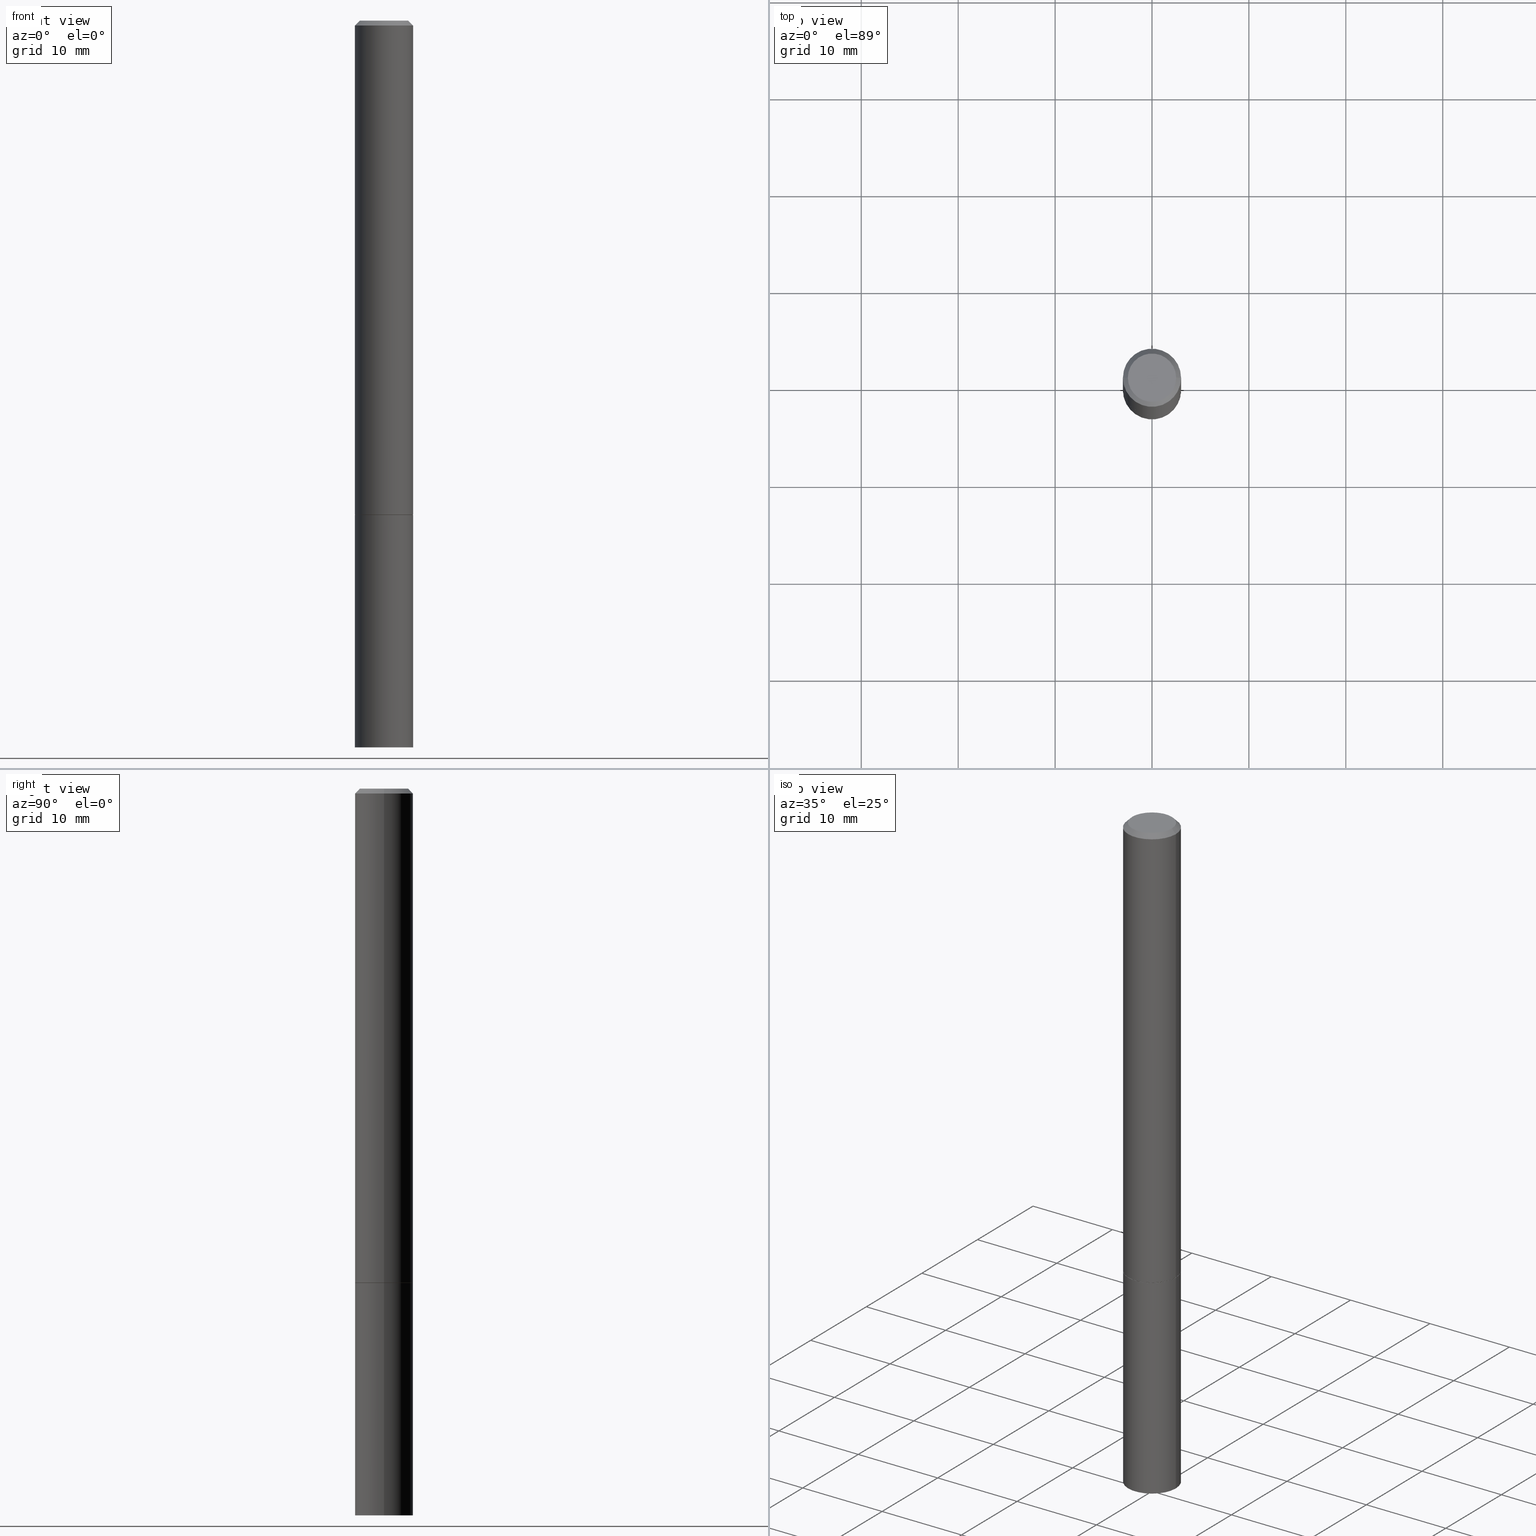
[diagram: canonical four-view strip — front | top / right | iso, engineering-drawing reading convention]
A machine part, canonical four-view strip (front | top / right | iso — engineering-drawing reading convention). The complete STEP part file that produces these views, byte-faithful:
ISO-10303-21;
HEADER;
FILE_DESCRIPTION (( 'STEP AP203' ),
    '1' );
FILE_NAME ('44893.STEP',
    '2024-02-28T08:02:05',
    ( '' ),
    ( '' ),
    'SwSTEP 2.0',
    'SolidWorks 2023',
    '' );
FILE_SCHEMA (( 'CONFIG_CONTROL_DESIGN' ));
ENDSEC;

DATA;
#1 = FACE_OUTER_BOUND ( 'NONE', #295, .T. ) ;
#2 = ORIENTED_EDGE ( 'NONE', *, *, #86, .T. ) ;
#3 = AXIS2_PLACEMENT_3D ( 'NONE', #230, #206, #266 ) ;
#4 = LINE ( 'NONE', #99, #300 ) ;
#5 = LINE ( 'NONE', #130, #227 ) ;
#6 = CARTESIAN_POINT ( 'NONE',  ( 0.000000000000000000, 0.000000000000000000, 0.000000000000000000 ) ) ;
#7 = CYLINDRICAL_SURFACE ( 'NONE', #36, 0.1180999999999998579 ) ;
#8 = EDGE_CURVE ( 'NONE', #323, #241, #169, .T. ) ;
#9 = ORIENTED_EDGE ( 'NONE', *, *, #264, .T. ) ;
#10 = AXIS2_PLACEMENT_3D ( 'NONE', #308, #226, #279 ) ;
#11 = ORIENTED_EDGE ( 'NONE', *, *, #335, .F. ) ;
#12 = PERSON_AND_ORGANIZATION ( #330, #58 ) ;
#13 = CARTESIAN_POINT ( 'NONE',  ( 0.1181000000000000383, -8.246878922347483612E-16, 5.758764772215001842E-30 ) ) ;
#14 =( NAMED_UNIT ( * ) PLANE_ANGLE_UNIT ( ) SI_UNIT ( $, .RADIAN. ) );
#15 = VECTOR ( 'NONE', #100, 39.37007874015748143 ) ;
#16 = CARTESIAN_POINT ( 'NONE',  ( 8.246878922347973692E-16, 0.1180999999999930161, -2.007900000000000240 ) ) ;
#17 = APPLICATION_CONTEXT ( 'configuration controlled 3d designs of mechanical parts and assemblies' ) ;
#18 = COORDINATED_UNIVERSAL_TIME_OFFSET ( 5, 0, .BEHIND. ) ;
#19 = ORIENTED_EDGE ( 'NONE', *, *, #45, .T. ) ;
#20 = PLANE ( 'NONE',  #57 ) ;
#21 = AXIS2_PLACEMENT_3D ( 'NONE', #292, #340, #90 ) ;
#22 = ADVANCED_FACE ( 'NONE', ( #240 ), #349, .F. ) ;
#23 = AXIS2_PLACEMENT_3D ( 'NONE', #183, #353, #41 ) ;
#24 = CARTESIAN_POINT ( 'NONE',  ( 7.220980290903470182E-29, -1.030964609733603853E-14, -2.952799999999999869 ) ) ;
#25 = PRODUCT_DEFINITION_SHAPE ( 'NONE', 'NONE',  #161 ) ;
#26 = CC_DESIGN_DATE_AND_TIME_ASSIGNMENT ( #80, #195, ( #234 ) ) ;
#27 = CYLINDRICAL_SURFACE ( 'NONE', #150, 0.1180999999999998579 ) ;
#28 = DIRECTION ( 'NONE',  ( -2.445468806185136597E-29, 3.491481338843145583E-15, 1.000000000000000000 ) ) ;
#29 = ORIENTED_EDGE ( 'NONE', *, *, #147, .T. ) ;
#30 = FACE_OUTER_BOUND ( 'NONE', #38, .T. ) ;
#31 = EDGE_LOOP ( 'NONE', ( #219, #71, #181, #277 ) ) ;
#32 = EDGE_CURVE ( 'NONE', #48, #194, #123, .T. ) ;
#33 = DIRECTION ( 'NONE',  ( -1.000000000000000000, 6.982962677686265922E-15, -4.876176775795935793E-29 ) ) ;
#34 = DIRECTION ( 'NONE',  ( 1.000000000000000000, -6.982962677686270655E-15, 0.000000000000000000 ) ) ;
#35 = COORDINATED_UNIVERSAL_TIME_OFFSET ( 5, 0, .BEHIND. ) ;
#36 = AXIS2_PLACEMENT_3D ( 'NONE', #158, #172, #66 ) ;
#37 = DIRECTION ( 'NONE',  ( -2.445468806185136597E-29, 3.491481338843145583E-15, 1.000000000000000000 ) ) ;
#38 = EDGE_LOOP ( 'NONE', ( #152, #326, #355, #97 ) ) ;
#39 = ORIENTED_EDGE ( 'NONE', *, *, #163, .F. ) ;
#40 = EDGE_CURVE ( 'NONE', #286, #270, #253, .T. ) ;
#41 = DIRECTION ( 'NONE',  ( 1.000000000000000000, -6.982962677686266711E-15, 4.876176775795935793E-29 ) ) ;
#42 = ORIENTED_EDGE ( 'NONE', *, *, #40, .F. ) ;
#43 = ORIENTED_EDGE ( 'NONE', *, *, #112, .F. ) ;
#44 = AXIS2_PLACEMENT_3D ( 'NONE', #314, #155, #33 ) ;
#45 = EDGE_CURVE ( 'NONE', #176, #136, #5, .T. ) ;
#46 = EDGE_LOOP ( 'NONE', ( #154, #215 ) ) ;
#47 = DESIGN_CONTEXT ( 'detailed design', #17, 'design' ) ;
#48 = VERTEX_POINT ( 'NONE', #209 ) ;
#49 = LINE ( 'NONE', #115, #361 ) ;
#50 = EDGE_CURVE ( 'NONE', #323, #251, #213, .T. ) ;
#51 = CC_DESIGN_PERSON_AND_ORGANIZATION_ASSIGNMENT ( #321, #124, ( #161 ) ) ;
#52 = AXIS2_PLACEMENT_3D ( 'NONE', #59, #265, #229 ) ;
#53 = LOCAL_TIME ( 3, 2, 5.000000000000000000, #179 ) ;
#54 = CARTESIAN_POINT ( 'NONE',  ( 0.1180999999999999689, -7.831741791159054599E-15, -2.006899999999999462 ) ) ;
#55 = DIRECTION ( 'NONE',  ( 1.000000000000000000, -6.982962677686266711E-15, 4.877161320636775200E-29 ) ) ;
#56 = ORIENTED_EDGE ( 'NONE', *, *, #60, .T. ) ;
#57 = AXIS2_PLACEMENT_3D ( 'NONE', #16, #168, #170 ) ;
#58 = ORGANIZATION ( 'UNSPECIFIED', 'UNSPECIFIED', '' ) ;
#59 = CARTESIAN_POINT ( 'NONE',  ( 4.890937612370287172E-31, -6.982962677686310098E-17, -0.02000000000000005593 ) ) ;
#60 = EDGE_CURVE ( 'NONE', #251, #316, #325, .T. ) ;
#61 = ORIENTED_EDGE ( 'NONE', *, *, #112, .T. ) ;
#62 = DATE_AND_TIME ( #341, #223 ) ;
#63 = CARTESIAN_POINT ( 'NONE',  ( -0.09809999999999984011, 7.199434520694523292E-16, -4.268512490100902468E-17 ) ) ;
#64 = ORIENTED_EDGE ( 'NONE', *, *, #50, .F. ) ;
#65 = ORIENTED_EDGE ( 'NONE', *, *, #147, .F. ) ;
#66 = DIRECTION ( 'NONE',  ( 1.000000000000000000, -6.982962677686266711E-15, 4.876176775795935793E-29 ) ) ;
#67 = DATE_TIME_ROLE ( 'creation_date' ) ;
#68 = CIRCLE ( 'NONE', #144, 0.1181000000000000383 ) ;
#69 = CC_DESIGN_APPROVAL ( #121, ( #161 ) ) ;
#70 = ORIENTED_EDGE ( 'NONE', *, *, #221, .F. ) ;
#71 = ORIENTED_EDGE ( 'NONE', *, *, #163, .T. ) ;
#72 = APPROVAL_ROLE ( '' ) ;
#73 = VERTEX_POINT ( 'NONE', #105 ) ;
#74 = PERSON_AND_ORGANIZATION_ROLE ( 'design_supplier' ) ;
#75 = CIRCLE ( 'NONE', #145, 0.1171000000000000235 ) ;
#76 = ORIENTED_EDGE ( 'NONE', *, *, #236, .F. ) ;
#77 = PERSON_AND_ORGANIZATION_ROLE ( 'classification_officer' ) ;
#78 = EDGE_CURVE ( 'NONE', #73, #293, #185, .T. ) ;
#79 = ORIENTED_EDGE ( 'NONE', *, *, #78, .F. ) ;
#80 = DATE_AND_TIME ( #140, #197 ) ;
#81 = ORIENTED_EDGE ( 'NONE', *, *, #149, .F. ) ;
#82 = DIRECTION ( 'NONE',  ( -2.445468806185136597E-29, 3.491481338843145583E-15, 1.000000000000000000 ) ) ;
#83 = APPROVAL_DATE_TIME ( #250, #298 ) ;
#84 = AXIS2_PLACEMENT_3D ( 'NONE', #110, #302, #327 ) ;
#85 = DIRECTION ( 'NONE',  ( -0.7071067811864992780, 7.493145998870180611E-15, 0.7071067811865957564 ) ) ;
#86 = EDGE_CURVE ( 'NONE', #241, #48, #111, .T. ) ;
#87 = CARTESIAN_POINT ( 'NONE',  ( 4.910256815939135309E-29, -7.010545380263150922E-15, -2.007899999999999796 ) ) ;
#88 = VECTOR ( 'NONE', #192, 39.37007874015748143 ) ;
#89 = FACE_OUTER_BOUND ( 'NONE', #31, .T. ) ;
#90 = DIRECTION ( 'NONE',  ( 1.000000000000000000, -6.982962677686266711E-15, 0.000000000000000000 ) ) ;
#91 = AXIS2_PLACEMENT_3D ( 'NONE', #6, #160, #102 ) ;
#92 = DIRECTION ( 'NONE',  ( -1.000000000000000000, 6.982962677686266711E-15, 0.000000000000000000 ) ) ;
#93 = CARTESIAN_POINT ( 'NONE',  ( -0.1180999999999998579, 8.391509709326773096E-16, -5.809262341591036777E-30 ) ) ;
#94 = DATE_AND_TIME ( #186, #53 ) ;
#95 = CARTESIAN_POINT ( 'NONE',  ( 0.000000000000000000, 0.000000000000000000, 0.000000000000000000 ) ) ;
#96 = CC_DESIGN_PERSON_AND_ORGANIZATION_ASSIGNMENT ( #12, #77, ( #234 ) ) ;
#97 = ORIENTED_EDGE ( 'NONE', *, *, #291, .F. ) ;
#98 = MECHANICAL_CONTEXT ( 'NONE', #193, 'mechanical' ) ;
#99 = CARTESIAN_POINT ( 'NONE',  ( -0.1180999999999997607, 7.548582654578832881E-16, -0.02000000000000005593 ) ) ;
#100 = DIRECTION ( 'NONE',  ( -2.445468806185136877E-29, 3.491481338843145188E-15, 1.000000000000000000 ) ) ;
#101 = EDGE_LOOP ( 'NONE', ( #65, #243, #249, #290 ) ) ;
#102 = DIRECTION ( 'NONE',  ( 1.000000000000000000, 0.000000000000000000, 0.000000000000000000 ) ) ;
#103 = VECTOR ( 'NONE', #159, 39.37007874015748143 ) ;
#104 =( LENGTH_UNIT ( ) NAMED_UNIT ( * ) SI_UNIT ( $, .METRE. ) );
#105 = CARTESIAN_POINT ( 'NONE',  ( 0.1181000000000000383, -1.113433398957078679E-14, -2.952799999999999869 ) ) ;
#106 = APPLICATION_PROTOCOL_DEFINITION ( 'international standard', 'config_control_design', 1994, #17 ) ;
#107 = ORIENTED_EDGE ( 'NONE', *, *, #283, .F. ) ;
#108 = ORIENTED_EDGE ( 'NONE', *, *, #60, .F. ) ;
#109 = ADVANCED_FACE ( 'NONE', ( #224 ), #20, .F. ) ;
#110 = CARTESIAN_POINT ( 'NONE',  ( 4.890937612370287172E-31, -6.982962677686310098E-17, -0.02000000000000005593 ) ) ;
#111 = LINE ( 'NONE', #199, #166 ) ;
#112 = EDGE_CURVE ( 'NONE', #293, #136, #173, .T. ) ;
#113 = PERSON_AND_ORGANIZATION ( #330, #58 ) ;
#114 = ORIENTED_EDGE ( 'NONE', *, *, #32, .F. ) ;
#115 = CARTESIAN_POINT ( 'NONE',  ( 0.1180999999999997607, -8.800544403136792597E-16, -0.02000000000000005593 ) ) ;
#116 = SHAPE_DEFINITION_REPRESENTATION ( #25, #280 ) ;
#117 = CONICAL_SURFACE ( 'NONE', #204, 0.1180999999999997607, 0.7853981633974460586 ) ;
#118 = PLANE ( 'NONE',  #10 ) ;
#119 = CONICAL_SURFACE ( 'NONE', #247, 0.1171000000000000235, 0.7853981633973801113 ) ;
#120 = CARTESIAN_POINT ( 'NONE',  ( 4.910256815939135309E-29, -7.010545380263150922E-15, -2.007899999999999796 ) ) ;
#121 = APPROVAL ( #345, 'UNSPECIFIED' ) ;
#122 = DIRECTION ( 'NONE',  ( 1.000000000000000000, -6.982962677686266711E-15, 4.876176775795935793E-29 ) ) ;
#123 = LINE ( 'NONE', #93, #15 ) ;
#124 = PERSON_AND_ORGANIZATION_ROLE ( 'creator' ) ;
#125 = DIRECTION ( 'NONE',  ( -2.445468806185136597E-29, 3.491481338843145583E-15, 1.000000000000000000 ) ) ;
#126 = DIRECTION ( 'NONE',  ( -2.445468806185136597E-29, 3.491481338843145583E-15, 1.000000000000000000 ) ) ;
#127 = CIRCLE ( 'NONE', #334, 0.1181000000000000383 ) ;
#128 = CC_DESIGN_APPROVAL ( #298, ( #234 ) ) ;
#129 = CARTESIAN_POINT ( 'NONE',  ( 0.09809999999999984011, -7.765346469475327723E-16, -4.268512490099900368E-17 ) ) ;
#130 = CARTESIAN_POINT ( 'NONE',  ( -0.1181000000000000383, 8.391509709326785915E-16, -5.809262341591045886E-30 ) ) ;
#131 = COORDINATED_UNIVERSAL_TIME_OFFSET ( 5, 0, .BEHIND. ) ;
#132 = CARTESIAN_POINT ( 'NONE',  ( 7.220980290903470182E-29, -1.030964609733603853E-14, -2.952799999999999869 ) ) ;
#133 = ORIENTED_EDGE ( 'NONE', *, *, #291, .T. ) ;
#134 = APPLICATION_PROTOCOL_DEFINITION ( 'international standard', 'config_control_design', 1994, #193 ) ;
#135 = CONICAL_SURFACE ( 'NONE', #84, 0.1180999999999997607, 0.7853981633974460586 ) ;
#136 = VERTEX_POINT ( 'NONE', #255 ) ;
#137 = ADVANCED_FACE ( 'NONE', ( #359 ), #118, .F. ) ;
#138 = CC_DESIGN_SECURITY_CLASSIFICATION ( #234, ( #190 ) ) ;
#139 = PERSON_AND_ORGANIZATION ( #330, #58 ) ;
#140 = CALENDAR_DATE ( 2024, 28, 2 ) ;
#141 = EDGE_LOOP ( 'NONE', ( #187, #365, #165, #108 ) ) ;
#142 = MANIFOLD_SOLID_BREP ( 'Body-Move/Copy2[2]', #336 ) ;
#143 = DIRECTION ( 'NONE',  ( 1.000000000000000000, -6.982962677686266711E-15, 0.000000000000000000 ) ) ;
#144 = AXIS2_PLACEMENT_3D ( 'NONE', #232, #153, #343 ) ;
#145 = AXIS2_PLACEMENT_3D ( 'NONE', #205, #281, #180 ) ;
#146 = DIRECTION ( 'NONE',  ( -2.445468806185136597E-29, 3.491481338843145583E-15, 1.000000000000000000 ) ) ;
#147 = EDGE_CURVE ( 'NONE', #286, #316, #49, .T. ) ;
#148 = CARTESIAN_POINT ( 'NONE',  ( 0.000000000000000000, 0.000000000000000000, 0.000000000000000000 ) ) ;
#149 = EDGE_CURVE ( 'NONE', #251, #48, #216, .T. ) ;
#150 = AXIS2_PLACEMENT_3D ( 'NONE', #148, #256, #362 ) ;
#151 = DIRECTION ( 'NONE',  ( 1.000000000000000000, -6.982962677686266711E-15, 0.000000000000000000 ) ) ;
#152 = ORIENTED_EDGE ( 'NONE', *, *, #86, .F. ) ;
#153 = DIRECTION ( 'NONE',  ( -2.445468806185136597E-29, 3.491481338843145583E-15, 1.000000000000000000 ) ) ;
#154 = ORIENTED_EDGE ( 'NONE', *, *, #352, .T. ) ;
#155 = DIRECTION ( 'NONE',  ( 2.438088387897960049E-29, -3.491481338843145188E-15, -1.000000000000000000 ) ) ;
#156 = PERSON_AND_ORGANIZATION ( #330, #58 ) ;
#157 = CONICAL_SURFACE ( 'NONE', #284, 0.1171000000000000235, 0.7853981633973801113 ) ;
#158 = CARTESIAN_POINT ( 'NONE',  ( 0.000000000000000000, 0.000000000000000000, 0.000000000000000000 ) ) ;
#159 = DIRECTION ( 'NONE',  ( -2.445468806185136877E-29, 3.491481338843145188E-15, 1.000000000000000000 ) ) ;
#160 = DIRECTION ( 'NONE',  ( 0.000000000000000000, 0.000000000000000000, 1.000000000000000000 ) ) ;
#161 = PRODUCT_DEFINITION ( 'UNKNOWN', '', #190, #47 ) ;
#162 = EDGE_LOOP ( 'NONE', ( #114, #133, #56, #107 ) ) ;
#163 = EDGE_CURVE ( 'NONE', #176, #73, #271, .T. ) ;
#164 = APPROVAL_STATUS ( 'not_yet_approved' ) ;
#165 = ORIENTED_EDGE ( 'NONE', *, *, #354, .F. ) ;
#166 = VECTOR ( 'NONE', #85, 39.37007874015748143 ) ;
#167 = LOCAL_TIME ( 3, 2, 5.000000000000000000, #131 ) ;
#168 = DIRECTION ( 'NONE',  ( 2.438088387897960049E-29, -3.491481338843145188E-15, -1.000000000000000000 ) ) ;
#169 = CIRCLE ( 'NONE', #309, 0.1171000000000000235 ) ;
#170 = DIRECTION ( 'NONE',  ( -1.000000000000000000, 6.982962677686265922E-15, -4.876176775795935793E-29 ) ) ;
#171 = FACE_OUTER_BOUND ( 'NONE', #162, .T. ) ;
#172 = DIRECTION ( 'NONE',  ( -2.445468806185136597E-29, 3.491481338843145583E-15, 1.000000000000000000 ) ) ;
#173 = CIRCLE ( 'NONE', #294, 0.1181000000000000383 ) ;
#174 = CIRCLE ( 'NONE', #351, 0.1180999999999997607 ) ;
#175 = CARTESIAN_POINT ( 'NONE',  ( 0.1181000000000000383, -7.835233272497899184E-15, -2.007899999999999796 ) ) ;
#176 = VERTEX_POINT ( 'NONE', #252 ) ;
#177 = APPROVAL_ROLE ( '' ) ;
#178 = FACE_OUTER_BOUND ( 'NONE', #339, .T. ) ;
#179 = COORDINATED_UNIVERSAL_TIME_OFFSET ( 5, 0, .BEHIND. ) ;
#180 = DIRECTION ( 'NONE',  ( 1.000000000000000000, -6.982962677686270655E-15, 0.000000000000000000 ) ) ;
#181 = ORIENTED_EDGE ( 'NONE', *, *, #78, .T. ) ;
#182 = CLOSED_SHELL ( 'NONE', ( #360, #214, #109, #225 ) ) ;
#183 = CARTESIAN_POINT ( 'NONE',  ( 0.000000000000000000, 0.000000000000000000, 0.000000000000000000 ) ) ;
#184 = CC_DESIGN_PERSON_AND_ORGANIZATION_ASSIGNMENT ( #113, #329, ( #190 ) ) ;
#185 = LINE ( 'NONE', #13, #211 ) ;
#186 = CALENDAR_DATE ( 2024, 28, 2 ) ;
#187 = ORIENTED_EDGE ( 'NONE', *, *, #149, .T. ) ;
#188 = APPROVAL_PERSON_ORGANIZATION ( #307, #298, #274 ) ;
#189 = FACE_OUTER_BOUND ( 'NONE', #101, .T. ) ;
#190 = PRODUCT_DEFINITION_FORMATION_WITH_SPECIFIED_SOURCE ( 'ANY', '', #242, .NOT_KNOWN. ) ;
#191 = COORDINATED_UNIVERSAL_TIME_OFFSET ( 5, 0, .BEHIND. ) ;
#192 = DIRECTION ( 'NONE',  ( 0.7071067811864992780, -2.468850131081751401E-15, 0.7071067811865957564 ) ) ;
#193 = APPLICATION_CONTEXT ( 'configuration controlled 3d designs of mechanical parts and assemblies' ) ;
#194 = VERTEX_POINT ( 'NONE', #310 ) ;
#195 = DATE_TIME_ROLE ( 'classification_date' ) ;
#196 = CIRCLE ( 'NONE', #52, 0.1180999999999997607 ) ;
#197 = LOCAL_TIME ( 3, 2, 5.000000000000000000, #18 ) ;
#198 = DIRECTION ( 'NONE',  ( 1.000000000000000000, -6.982962677686262766E-15, 0.000000000000000000 ) ) ;
#199 = CARTESIAN_POINT ( 'NONE',  ( -0.1171000000000000235, -6.178499836688072944E-15, -2.007899999999999796 ) ) ;
#200 = APPROVAL_PERSON_ORGANIZATION ( #212, #121, #72 ) ;
#201 = CARTESIAN_POINT ( 'NONE',  ( 0.1171000000000000235, -7.828250309820213170E-15, -2.007899999999999796 ) ) ;
#202 = DIRECTION ( 'NONE',  ( -2.438088387897960049E-29, 3.491481338843145188E-15, 1.000000000000000000 ) ) ;
#203 = CYLINDRICAL_SURFACE ( 'NONE', #305, 0.1181000000000000383 ) ;
#204 = AXIS2_PLACEMENT_3D ( 'NONE', #262, #364, #92 ) ;
#205 = CARTESIAN_POINT ( 'NONE',  ( 4.910256815939135309E-29, -7.010545380263150922E-15, -2.007899999999999796 ) ) ;
#206 = DIRECTION ( 'NONE',  ( -2.445468806185136597E-29, 3.491481338843145583E-15, 1.000000000000000000 ) ) ;
#207 = PERSON_AND_ORGANIZATION_ROLE ( 'design_owner' ) ;
#208 = DIRECTION ( 'NONE',  ( -2.445468806185136597E-29, 3.491481338843145583E-15, 1.000000000000000000 ) ) ;
#209 = CARTESIAN_POINT ( 'NONE',  ( -0.1180999999999999689, -2.699290791917903859E-15, -2.006899999999999462 ) ) ;
#210 = ADVANCED_FACE ( 'NONE', ( #178 ), #117, .T. ) ;
#211 = VECTOR ( 'NONE', #245, 39.37007874015748143 ) ;
#212 = PERSON_AND_ORGANIZATION ( #330, #58 ) ;
#213 = LINE ( 'NONE', #275, #88 ) ;
#214 = ADVANCED_FACE ( 'NONE', ( #1 ), #289, .T. ) ;
#215 = ORIENTED_EDGE ( 'NONE', *, *, #40, .T. ) ;
#216 = CIRCLE ( 'NONE', #222, 0.1180999999999999689 ) ;
#217 = SECURITY_CLASSIFICATION_LEVEL ( 'unclassified' ) ;
#218 = ORIENTED_EDGE ( 'NONE', *, *, #335, .T. ) ;
#219 = ORIENTED_EDGE ( 'NONE', *, *, #45, .F. ) ;
#220 = CARTESIAN_POINT ( 'NONE',  ( 4.907811347132949706E-29, -7.007053898924307126E-15, -2.006899999999999462 ) ) ;
#221 = EDGE_CURVE ( 'NONE', #270, #194, #4, .T. ) ;
#222 = AXIS2_PLACEMENT_3D ( 'NONE', #220, #82, #143 ) ;
#223 = LOCAL_TIME ( 3, 2, 5.000000000000000000, #35 ) ;
#224 = FACE_OUTER_BOUND ( 'NONE', #363, .T. ) ;
#225 = ADVANCED_FACE ( 'NONE', ( #89 ), #203, .T. ) ;
#226 = DIRECTION ( 'NONE',  ( 2.438088387897960049E-29, -3.491481338843145188E-15, -1.000000000000000000 ) ) ;
#227 = VECTOR ( 'NONE', #237, 39.37007874015748143 ) ;
#228 = CARTESIAN_POINT ( 'NONE',  ( 1.043851414335219781E-45, -1.490343170380447145E-31, -4.268512490100411279E-17 ) ) ;
#229 = DIRECTION ( 'NONE',  ( 1.000000000000000000, -6.982962677686266711E-15, 0.000000000000000000 ) ) ;
#230 = CARTESIAN_POINT ( 'NONE',  ( 1.043851414335219781E-45, -1.490343170380447145E-31, -4.268512490100411279E-17 ) ) ;
#231 = PRODUCT_RELATED_PRODUCT_CATEGORY ( 'detail', '', ( #242 ) ) ;
#232 = CARTESIAN_POINT ( 'NONE',  ( 4.910256815939135309E-29, -7.010545380263150922E-15, -2.007899999999999796 ) ) ;
#233 = CARTESIAN_POINT ( 'NONE',  ( 4.910256815939135309E-29, -7.010545380263150922E-15, -2.007899999999999796 ) ) ;
#234 = SECURITY_CLASSIFICATION ( '', '', #217 ) ;
#235 = FACE_OUTER_BOUND ( 'NONE', #141, .T. ) ;
#236 = EDGE_CURVE ( 'NONE', #241, #323, #75, .T. ) ;
#237 = DIRECTION ( 'NONE',  ( -2.445468806185136877E-29, 3.491481338843145188E-15, 1.000000000000000000 ) ) ;
#238 = DATE_AND_TIME ( #288, #167 ) ;
#239 = DIRECTION ( 'NONE',  ( -2.445468806185136597E-29, 3.491481338843145583E-15, 1.000000000000000000 ) ) ;
#240 = FACE_OUTER_BOUND ( 'NONE', #263, .T. ) ;
#241 = VERTEX_POINT ( 'NONE', #318 ) ;
#242 = PRODUCT ( '44893', '44893', '', ( #98 ) ) ;
#243 = ORIENTED_EDGE ( 'NONE', *, *, #352, .F. ) ;
#244 = CC_DESIGN_DATE_AND_TIME_ASSIGNMENT ( #62, #67, ( #161 ) ) ;
#245 = DIRECTION ( 'NONE',  ( -2.445468806185136877E-29, 3.491481338843145188E-15, 1.000000000000000000 ) ) ;
#246 =( NAMED_UNIT ( * ) SI_UNIT ( $, .STERADIAN. ) SOLID_ANGLE_UNIT ( ) );
#247 = AXIS2_PLACEMENT_3D ( 'NONE', #311, #208, #320 ) ;
#248 = ADVANCED_FACE ( 'NONE', ( #30 ), #119, .T. ) ;
#249 = ORIENTED_EDGE ( 'NONE', *, *, #221, .T. ) ;
#250 = DATE_AND_TIME ( #331, #267 ) ;
#251 = VERTEX_POINT ( 'NONE', #54 ) ;
#252 = CARTESIAN_POINT ( 'NONE',  ( -0.1181000000000000383, -7.820944767866917317E-15, -2.952799999999999869 ) ) ;
#253 = CIRCLE ( 'NONE', #3, 0.09809999999999984011 ) ;
#254 = AXIS2_PLACEMENT_3D ( 'NONE', #228, #313, #55 ) ;
#255 = CARTESIAN_POINT ( 'NONE',  ( -0.1181000000000000383, -7.820944767866917317E-15, -2.007899999999999796 ) ) ;
#256 = DIRECTION ( 'NONE',  ( -2.445468806185136597E-29, 3.491481338843145583E-15, 1.000000000000000000 ) ) ;
#257 = EDGE_LOOP ( 'NONE', ( #218, #19, #43, #79 ) ) ;
#258 = MANIFOLD_SOLID_BREP ( 'Body-Move/Copy2[1]', #182 ) ;
#259 = FACE_OUTER_BOUND ( 'NONE', #257, .T. ) ;
#260 = ORIENTED_EDGE ( 'NONE', *, *, #8, .T. ) ;
#261 = APPROVAL ( #268, 'UNSPECIFIED' ) ;
#262 = CARTESIAN_POINT ( 'NONE',  ( 4.890937612370287172E-31, -6.982962677686310098E-17, -0.02000000000000005593 ) ) ;
#263 = EDGE_LOOP ( 'NONE', ( #303, #76 ) ) ;
#264 = EDGE_CURVE ( 'NONE', #136, #293, #68, .T. ) ;
#265 = DIRECTION ( 'NONE',  ( -2.445468806185136597E-29, 3.491481338843145583E-15, 1.000000000000000000 ) ) ;
#266 = DIRECTION ( 'NONE',  ( 1.000000000000000000, -6.982962677686266711E-15, 4.877161320636775200E-29 ) ) ;
#267 = LOCAL_TIME ( 3, 2, 5.000000000000000000, #191 ) ;
#268 = APPROVAL_STATUS ( 'not_yet_approved' ) ;
#269 = FACE_OUTER_BOUND ( 'NONE', #332, .T. ) ;
#270 = VERTEX_POINT ( 'NONE', #63 ) ;
#271 = CIRCLE ( 'NONE', #315, 0.1181000000000000383 ) ;
#272 = CC_DESIGN_APPROVAL ( #261, ( #190 ) ) ;
#273 = CYLINDRICAL_SURFACE ( 'NONE', #23, 0.1181000000000000383 ) ;
#274 = APPROVAL_ROLE ( '' ) ;
#275 = CARTESIAN_POINT ( 'NONE',  ( 0.1171000000000000235, -7.828250309820213170E-15, -2.007899999999999796 ) ) ;
#276 = CC_DESIGN_PERSON_AND_ORGANIZATION_ASSIGNMENT ( #139, #74, ( #190 ) ) ;
#277 = ORIENTED_EDGE ( 'NONE', *, *, #264, .F. ) ;
#278 = DIRECTION ( 'NONE',  ( 0.7071067811865459074, -7.319954787623249734E-15, -0.7071067811865491270 ) ) ;
#279 = DIRECTION ( 'NONE',  ( -1.000000000000000000, 6.982962677686265922E-15, -4.876176775795935793E-29 ) ) ;
#280 = ADVANCED_BREP_SHAPE_REPRESENTATION ( '44893', ( #258, #142, #91 ), #317 ) ;
#281 = DIRECTION ( 'NONE',  ( -2.445468806185136597E-29, 3.491481338843145583E-15, 1.000000000000000000 ) ) ;
#282 = CARTESIAN_POINT ( 'NONE',  ( 4.890937612370287172E-31, -6.982962677686310098E-17, -0.02000000000000005593 ) ) ;
#283 = EDGE_CURVE ( 'NONE', #194, #316, #196, .T. ) ;
#284 = AXIS2_PLACEMENT_3D ( 'NONE', #120, #37, #285 ) ;
#285 = DIRECTION ( 'NONE',  ( 1.000000000000000000, -6.982962677686270655E-15, 0.000000000000000000 ) ) ;
#286 = VERTEX_POINT ( 'NONE', #129 ) ;
#287 = ADVANCED_FACE ( 'NONE', ( #235 ), #7, .T. ) ;
#288 = CALENDAR_DATE ( 2024, 28, 2 ) ;
#289 = PLANE ( 'NONE',  #44 ) ;
#290 = ORIENTED_EDGE ( 'NONE', *, *, #283, .T. ) ;
#291 = EDGE_CURVE ( 'NONE', #48, #251, #342, .T. ) ;
#292 = CARTESIAN_POINT ( 'NONE',  ( 4.907811347132949706E-29, -7.007053898924307126E-15, -2.006899999999999462 ) ) ;
#293 = VERTEX_POINT ( 'NONE', #175 ) ;
#294 = AXIS2_PLACEMENT_3D ( 'NONE', #87, #356, #198 ) ;
#295 = EDGE_LOOP ( 'NONE', ( #11, #39 ) ) ;
#296 = APPROVAL_DATE_TIME ( #94, #121 ) ;
#297 =( CONVERSION_BASED_UNIT ( 'INCH', #322 ) LENGTH_UNIT ( ) NAMED_UNIT ( #312 ) );
#298 = APPROVAL ( #164, 'UNSPECIFIED' ) ;
#299 = ORIENTED_EDGE ( 'NONE', *, *, #354, .T. ) ;
#300 = VECTOR ( 'NONE', #346, 39.37007874015748143 ) ;
#301 = APPROVAL_PERSON_ORGANIZATION ( #156, #261, #177 ) ;
#302 = DIRECTION ( 'NONE',  ( 2.445468806185136597E-29, -3.491481338843145583E-15, -1.000000000000000000 ) ) ;
#303 = ORIENTED_EDGE ( 'NONE', *, *, #8, .F. ) ;
#304 = CARTESIAN_POINT ( 'NONE',  ( 0.1180999999999998579, -8.246878922347470793E-16, 5.758764772214993434E-30 ) ) ;
#305 = AXIS2_PLACEMENT_3D ( 'NONE', #95, #125, #122 ) ;
#306 = CIRCLE ( 'NONE', #254, 0.09809999999999984011 ) ;
#307 = PERSON_AND_ORGANIZATION ( #330, #58 ) ;
#308 = CARTESIAN_POINT ( 'NONE',  ( 6.850286386810215676E-16, 0.09809999999999984011, -3.638568817910140512E-16 ) ) ;
#309 = AXIS2_PLACEMENT_3D ( 'NONE', #319, #126, #34 ) ;
#310 = CARTESIAN_POINT ( 'NONE',  ( -0.1180999999999997607, 7.548582654578832881E-16, -0.02000000000000005593 ) ) ;
#311 = CARTESIAN_POINT ( 'NONE',  ( 4.910256815939135309E-29, -7.010545380263150922E-15, -2.007899999999999796 ) ) ;
#312 = DIMENSIONAL_EXPONENTS ( 1.000000000000000000, 0.000000000000000000, 0.000000000000000000, 0.000000000000000000, 0.000000000000000000, 0.000000000000000000, 0.000000000000000000 ) ;
#313 = DIRECTION ( 'NONE',  ( -2.445468806185136597E-29, 3.491481338843145583E-15, 1.000000000000000000 ) ) ;
#314 = CARTESIAN_POINT ( 'NONE',  ( 8.246878922348204434E-16, 0.1180999999999897132, -2.952800000000000313 ) ) ;
#315 = AXIS2_PLACEMENT_3D ( 'NONE', #24, #146, #357 ) ;
#316 = VERTEX_POINT ( 'NONE', #338 ) ;
#317 =( GEOMETRIC_REPRESENTATION_CONTEXT ( 3 ) GLOBAL_UNCERTAINTY_ASSIGNED_CONTEXT ( ( #358 ) ) GLOBAL_UNIT_ASSIGNED_CONTEXT ( ( #297, #14, #246 ) ) REPRESENTATION_CONTEXT ( 'NONE', 'WORKASPACE' ) );
#318 = CARTESIAN_POINT ( 'NONE',  ( -0.1171000000000000235, -6.173201382339850542E-15, -2.007899999999999796 ) ) ;
#319 = CARTESIAN_POINT ( 'NONE',  ( 4.910256815939135309E-29, -7.010545380263150922E-15, -2.007899999999999796 ) ) ;
#320 = DIRECTION ( 'NONE',  ( 1.000000000000000000, -6.982962677686270655E-15, 0.000000000000000000 ) ) ;
#321 = PERSON_AND_ORGANIZATION ( #330, #58 ) ;
#322 = LENGTH_MEASURE_WITH_UNIT ( LENGTH_MEASURE( 0.02539999999999999897 ), #104 );
#323 = VERTEX_POINT ( 'NONE', #201 ) ;
#324 = CC_DESIGN_PERSON_AND_ORGANIZATION_ASSIGNMENT ( #350, #207, ( #242 ) ) ;
#325 = LINE ( 'NONE', #304, #103 ) ;
#326 = ORIENTED_EDGE ( 'NONE', *, *, #236, .T. ) ;
#327 = DIRECTION ( 'NONE',  ( -1.000000000000000000, 6.982962677686266711E-15, 0.000000000000000000 ) ) ;
#328 = ADVANCED_FACE ( 'NONE', ( #269 ), #157, .T. ) ;
#329 = PERSON_AND_ORGANIZATION_ROLE ( 'creator' ) ;
#330 = PERSON ( 'UNSPECIFIED', 'UNSPECIFIED', 'UNSPECIFIED', ('UNSPECIFIED'), ('UNSPECIFIED'), ('UNSPECIFIED') ) ;
#331 = CALENDAR_DATE ( 2024, 28, 2 ) ;
#332 = EDGE_LOOP ( 'NONE', ( #260, #2, #81, #64 ) ) ;
#333 = AXIS2_PLACEMENT_3D ( 'NONE', #233, #202, #344 ) ;
#334 = AXIS2_PLACEMENT_3D ( 'NONE', #132, #239, #348 ) ;
#335 = EDGE_CURVE ( 'NONE', #73, #176, #127, .T. ) ;
#336 = CLOSED_SHELL ( 'NONE', ( #328, #287, #210, #366, #337, #248, #22, #137 ) ) ;
#337 = ADVANCED_FACE ( 'NONE', ( #171 ), #27, .T. ) ;
#338 = CARTESIAN_POINT ( 'NONE',  ( 0.1180999999999997607, -8.800544403136792597E-16, -0.02000000000000005593 ) ) ;
#339 = EDGE_LOOP ( 'NONE', ( #42, #29, #299, #70 ) ) ;
#340 = DIRECTION ( 'NONE',  ( -2.445468806185136597E-29, 3.491481338843145583E-15, 1.000000000000000000 ) ) ;
#341 = CALENDAR_DATE ( 2024, 28, 2 ) ;
#342 = CIRCLE ( 'NONE', #21, 0.1180999999999999689 ) ;
#343 = DIRECTION ( 'NONE',  ( 1.000000000000000000, -6.982962677686262766E-15, 0.000000000000000000 ) ) ;
#344 = DIRECTION ( 'NONE',  ( 1.000000000000000000, -6.982962677686265922E-15, 4.876176775795935793E-29 ) ) ;
#345 = APPROVAL_STATUS ( 'not_yet_approved' ) ;
#346 = DIRECTION ( 'NONE',  ( -0.7071067811865459074, 2.468850131082240100E-15, -0.7071067811865491270 ) ) ;
#347 = APPROVAL_DATE_TIME ( #238, #261 ) ;
#348 = DIRECTION ( 'NONE',  ( 1.000000000000000000, -6.982962677686270655E-15, 0.000000000000000000 ) ) ;
#349 = PLANE ( 'NONE',  #333 ) ;
#350 = PERSON_AND_ORGANIZATION ( #330, #58 ) ;
#351 = AXIS2_PLACEMENT_3D ( 'NONE', #282, #28, #151 ) ;
#352 = EDGE_CURVE ( 'NONE', #270, #286, #306, .T. ) ;
#353 = DIRECTION ( 'NONE',  ( -2.445468806185136597E-29, 3.491481338843145583E-15, 1.000000000000000000 ) ) ;
#354 = EDGE_CURVE ( 'NONE', #316, #194, #174, .T. ) ;
#355 = ORIENTED_EDGE ( 'NONE', *, *, #50, .T. ) ;
#356 = DIRECTION ( 'NONE',  ( -2.445468806185136597E-29, 3.491481338843145583E-15, 1.000000000000000000 ) ) ;
#357 = DIRECTION ( 'NONE',  ( 1.000000000000000000, -6.982962677686270655E-15, 0.000000000000000000 ) ) ;
#358 = UNCERTAINTY_MEASURE_WITH_UNIT (LENGTH_MEASURE( 1.000000000000000082E-05 ), #297, 'distance_accuracy_value', 'NONE');
#359 = FACE_OUTER_BOUND ( 'NONE', #46, .T. ) ;
#360 = ADVANCED_FACE ( 'NONE', ( #259 ), #273, .T. ) ;
#361 = VECTOR ( 'NONE', #278, 39.37007874015748143 ) ;
#362 = DIRECTION ( 'NONE',  ( 1.000000000000000000, -6.982962677686266711E-15, 4.876176775795935793E-29 ) ) ;
#363 = EDGE_LOOP ( 'NONE', ( #61, #9 ) ) ;
#364 = DIRECTION ( 'NONE',  ( 2.445468806185136597E-29, -3.491481338843145583E-15, -1.000000000000000000 ) ) ;
#365 = ORIENTED_EDGE ( 'NONE', *, *, #32, .T. ) ;
#366 = ADVANCED_FACE ( 'NONE', ( #189 ), #135, .T. ) ;
ENDSEC;
END-ISO-10303-21;
